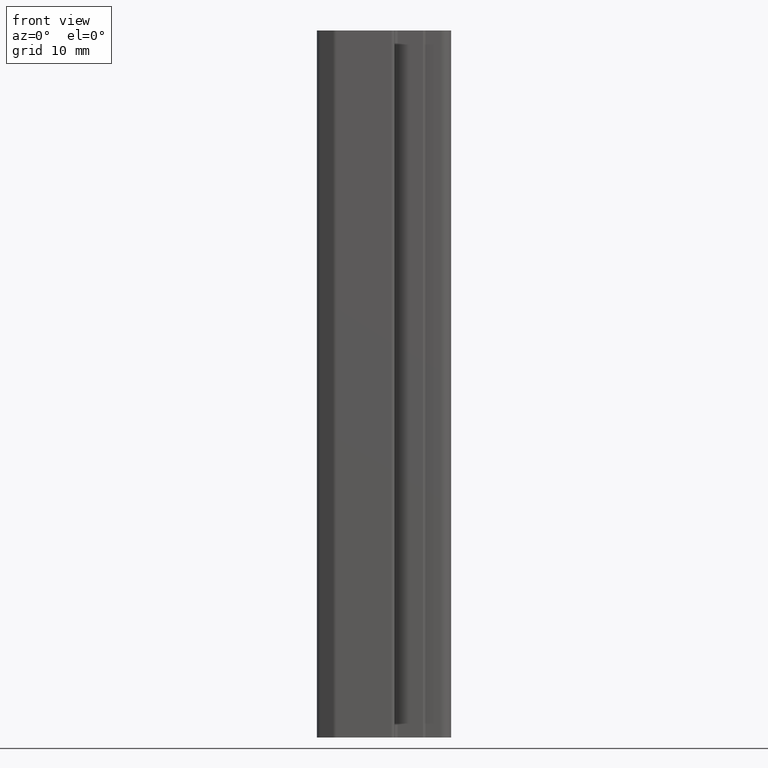
[diagram: clean part render]
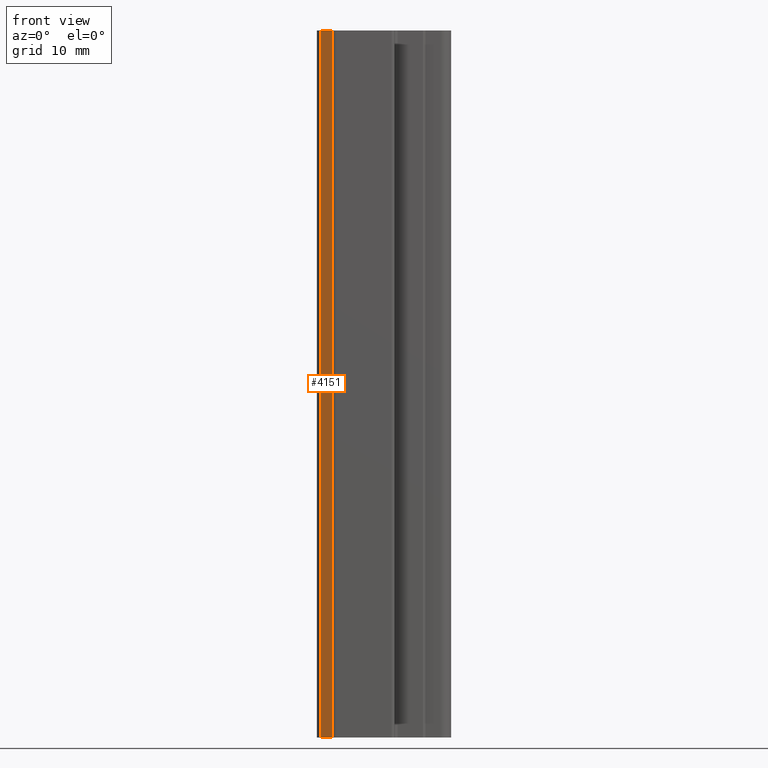
[diagram: same view with one face highlighted and labeled with its STEP entity id]
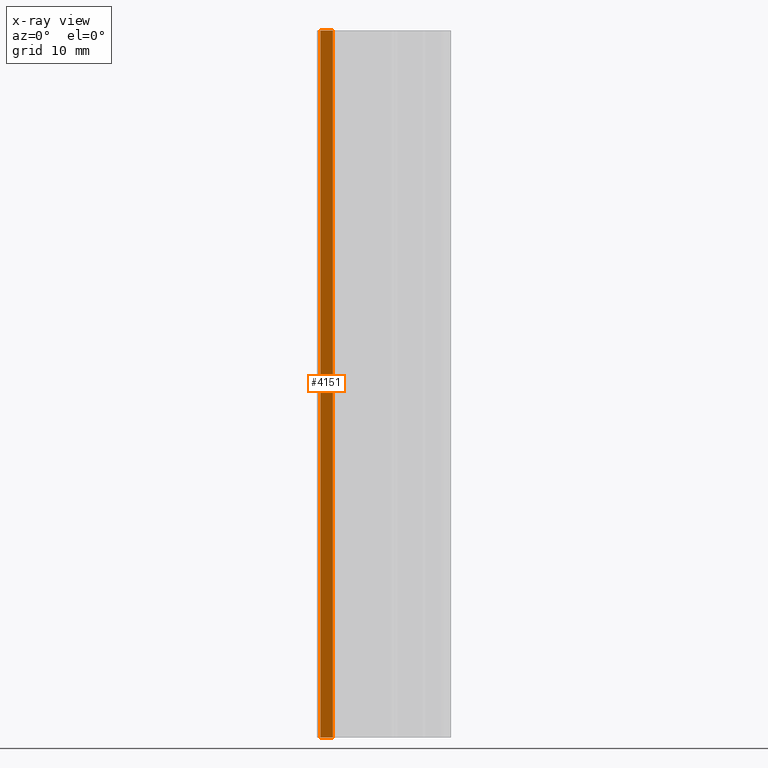
[diagram: x-ray of the same camera — body ghosted, the highlighted face saturated]
A machine part, front view. The second image highlights one B-rep face of the part: STEP entity #4151.
The next image is the same camera in x-ray: the body ghosted, the highlighted face saturated — about 0% of this face is hidden behind the body in this view.
In plain terms, the highlighted planar face has unit normal (-0.5, -0.866, 0).
Its self-contained STEP definition (entity closure, byte-faithful):
#145=FACE_OUTER_BOUND('',#347,.T.);
#347=EDGE_LOOP('',(#3139,#3140,#3141,#3142));
#808=LINE('',#6236,#1408);
#810=LINE('',#6240,#1410);
#811=LINE('',#6242,#1411);
#812=LINE('',#6243,#1412);
#1408=VECTOR('',#5099,10.);
#1410=VECTOR('',#5103,10.);
#1411=VECTOR('',#5104,10.);
#1412=VECTOR('',#5105,10.);
#1879=VERTEX_POINT('',#6233);
#1880=VERTEX_POINT('',#6235);
#1881=VERTEX_POINT('',#6239);
#1882=VERTEX_POINT('',#6241);
#2408=EDGE_CURVE('',#1880,#1879,#808,.T.);
#2410=EDGE_CURVE('',#1879,#1881,#810,.T.);
#2411=EDGE_CURVE('',#1882,#1881,#811,.T.);
#2412=EDGE_CURVE('',#1882,#1880,#812,.T.);
#3139=ORIENTED_EDGE('',*,*,#2410,.T.);
#3140=ORIENTED_EDGE('',*,*,#2411,.F.);
#3141=ORIENTED_EDGE('',*,*,#2412,.T.);
#3142=ORIENTED_EDGE('',*,*,#2408,.T.);
#3949=PLANE('',#4376);
#4151=ADVANCED_FACE('',(#145),#3949,.T.);
#4376=AXIS2_PLACEMENT_3D('',#6238,#5101,#5102);
#5099=DIRECTION('',(0.,0.,1.));
#5101=DIRECTION('center_axis',(-0.499999242042033,-0.866025841391233,0.));
#5102=DIRECTION('ref_axis',(0.,0.,-1.));
#5103=DIRECTION('',(-0.866025841391232,0.499999242042033,0.));
#5104=DIRECTION('',(0.,0.,1.));
#5105=DIRECTION('',(0.866025841391232,-0.499999242042033,0.));
#6233=CARTESIAN_POINT('',(1149.70455445358,1707.05590969949,100.));
#6235=CARTESIAN_POINT('',(1149.70455445358,1707.05590969949,0.));
#6236=CARTESIAN_POINT('',(1149.70455445358,1707.05590969949,0.));
#6238=CARTESIAN_POINT('Origin',(1149.70455445358,1707.05590969949,0.));
#6239=CARTESIAN_POINT('',(1147.93648025274,1708.07670575204,100.));
#6240=CARTESIAN_POINT('',(1147.93648025274,1708.07670575204,100.));
#6241=CARTESIAN_POINT('',(1147.93648025274,1708.07670575204,0.));
#6242=CARTESIAN_POINT('',(1147.93648025274,1708.07670575204,0.));
#6243=CARTESIAN_POINT('',(1147.93648025274,1708.07670575204,0.));